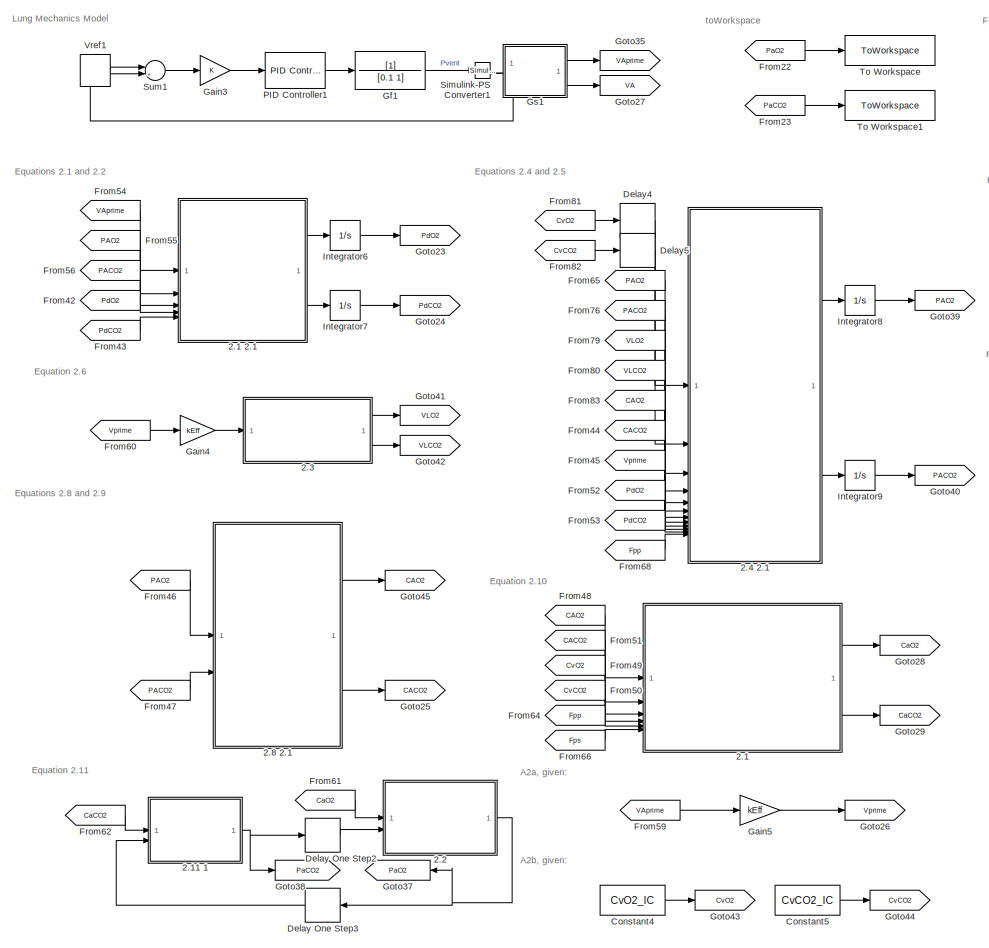
[diagram: root canvas - part 1/3, left side, full height]
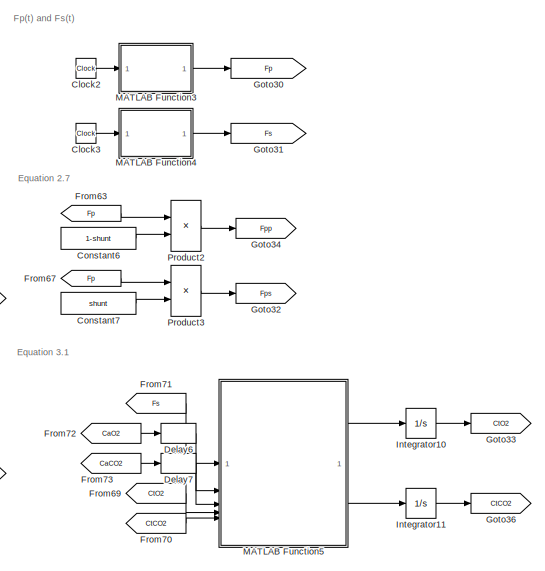
[diagram: root canvas - part 2/3, top center region]
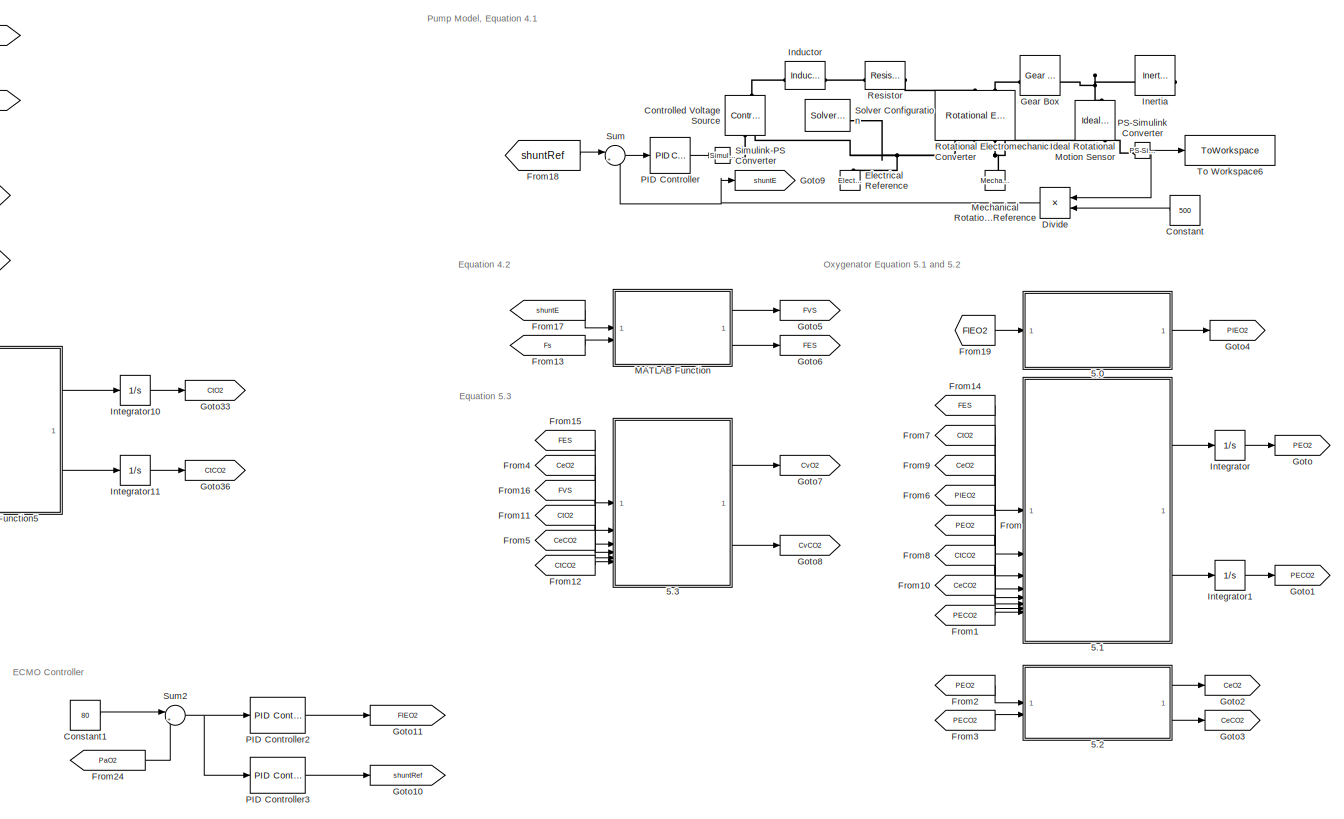
[diagram: root canvas - part 3/3, right side, full height]
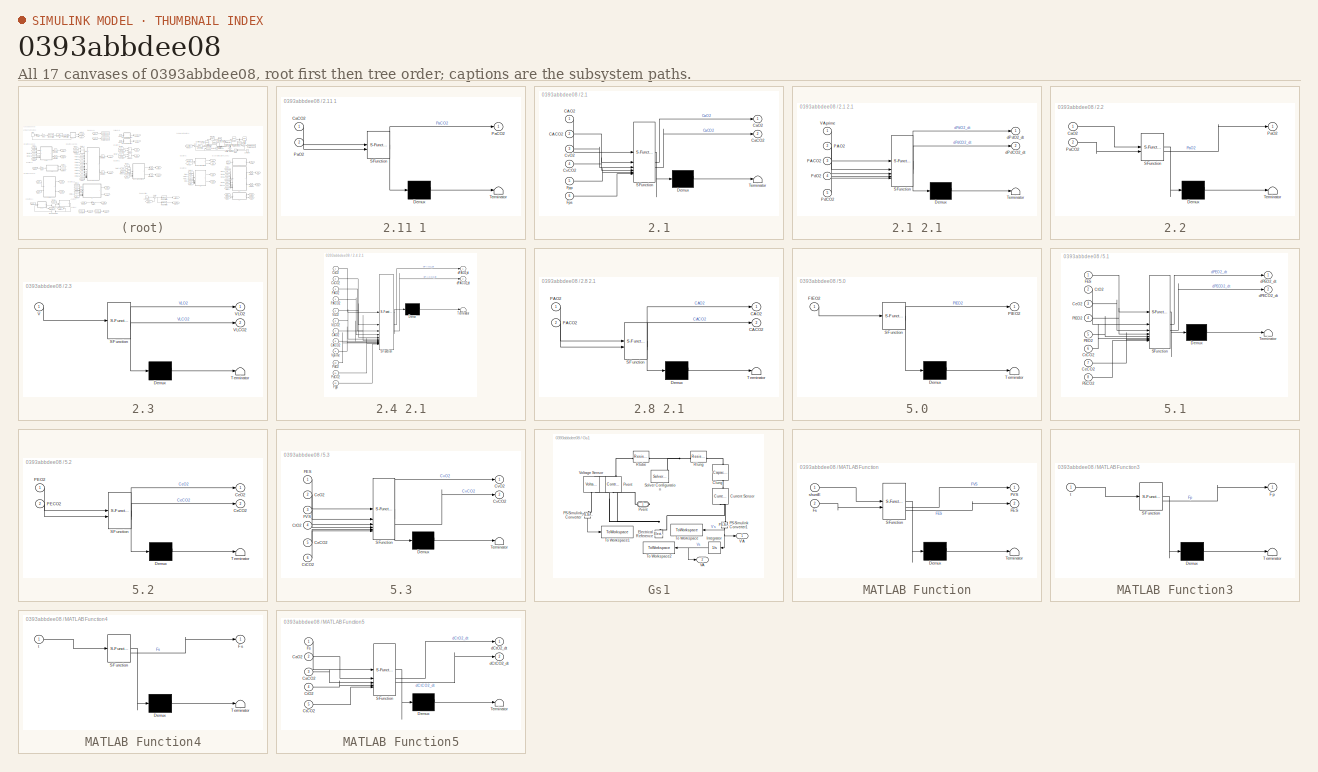
[diagram: thumbnail index - all 17 canvases of the model, root first then tree order]
MODEL slx_0393abbdee08
KIND model
CONFIG AbsTol = auto
CONFIG EnableMultiTasking = off
CONFIG FixedStep = auto
CONFIG MaxStep = auto
CONFIG MinStep = auto
CONFIG RelTol = 1e-3
CONFIG SampleTimeConstraint = Unconstrained
CONFIG SolverName = VariableStepAuto
CONFIG StartTime = 0.0
CONFIG StopTime = 1200
BLOCK [SubSystem]  2.11 1
  ErrorFcn = Stateflow.Translate.translate
  PermitHierarchicalResolution = ExplicitOnly
  SFBlockType = MATLAB Function
  SystemSampleTime = Tsamp
  TreatAsAtomicUnit = on
BLOCK [Demux]  2.11 1/ Demux 
  Outputs = 1
BLOCK [S-Function]  2.11 1/ SFunction 
  EnableBusSupport = on
  FunctionName = sf_sfun
  Parameters = CsatCO2,K2,alpha2,beta2,h2
  PortCounts = [2 2]
  SFcnIsStateOwnerBlock = off
  SFunctionDeploymentMode = off
  Tag = Stateflow S-Function 7
BLOCK [Terminator]  2.11 1/ Terminator 
BLOCK [Inport]  2.11 1/CaCO2
BLOCK [Outport]  2.11 1/PaCO2
BLOCK [Inport]  2.11 1/PaO2
  Port = 2
BLOCK [SubSystem] 2.1
  ErrorFcn = Stateflow.Translate.translate
  PermitHierarchicalResolution = ExplicitOnly
  SFBlockType = MATLAB Function
  SystemSampleTime = Tsamp
  TreatAsAtomicUnit = on
BLOCK [SubSystem] 2.1 2.1
  ErrorFcn = Stateflow.Translate.translate
  PermitHierarchicalResolution = ExplicitOnly
  SFBlockType = MATLAB Function
  SystemSampleTime = Tsamp
  TreatAsAtomicUnit = on
BLOCK [Demux] 2.1 2.1/ Demux 
  Outputs = 1
BLOCK [S-Function] 2.1 2.1/ SFunction 
  EnableBusSupport = on
  FunctionName = sf_sfun
  Parameters = PICO2,PIO2,VD
  PortCounts = [5 3]
  SFcnIsStateOwnerBlock = off
  SFunctionDeploymentMode = off
  Tag = Stateflow S-Function 2
BLOCK [Terminator] 2.1 2.1/ Terminator 
BLOCK [Inport] 2.1 2.1/PACO2
  Port = 3
BLOCK [Inport] 2.1 2.1/PAO2
  Port = 2
BLOCK [Inport] 2.1 2.1/PdCO2
  Port = 5
BLOCK [Inport] 2.1 2.1/PdO2
  Port = 4
BLOCK [Inport] 2.1 2.1/VAprime
BLOCK [Outport] 2.1 2.1/dPdCO2_dt
  Port = 2
BLOCK [Outport] 2.1 2.1/dPdO2_dt
BLOCK [Demux] 2.1/ Demux 
  Outputs = 1
BLOCK [S-Function] 2.1/ SFunction 
  EnableBusSupport = on
  FunctionName = sf_sfun
  PortCounts = [6 3]
  SFcnIsStateOwnerBlock = off
  SFunctionDeploymentMode = off
  Tag = Stateflow S-Function 4
BLOCK [Terminator] 2.1/ Terminator 
BLOCK [Inport] 2.1/CACO2
  Port = 2
BLOCK [Inport] 2.1/CAO2
BLOCK [Outport] 2.1/CaCO2
  Port = 2
BLOCK [Outport] 2.1/CaO2
BLOCK [Inport] 2.1/CvCO2
  Port = 4
BLOCK [Inport] 2.1/CvO2
  Port = 3
BLOCK [Inport] 2.1/Fpp
  Port = 5
BLOCK [Inport] 2.1/Fps
  Port = 6
BLOCK [SubSystem] 2.2
  ErrorFcn = Stateflow.Translate.translate
  PermitHierarchicalResolution = ExplicitOnly
  SFBlockType = MATLAB Function
  SystemSampleTime = Tsamp
  TreatAsAtomicUnit = on
BLOCK [Demux] 2.2/ Demux 
  Outputs = 1
BLOCK [S-Function] 2.2/ SFunction 
  EnableBusSupport = on
  FunctionName = sf_sfun
  Parameters = CsatO2,K1,alpha1,beta1,h1
  PortCounts = [2 2]
  SFcnIsStateOwnerBlock = off
  SFunctionDeploymentMode = off
  Tag = Stateflow S-Function 8
BLOCK [Terminator] 2.2/ Terminator 
BLOCK [Inport] 2.2/CaO2
BLOCK [Inport] 2.2/PaCO2
  Port = 2
BLOCK [Outport] 2.2/PaO2
BLOCK [SubSystem] 2.3
  ErrorFcn = Stateflow.Translate.translate
  PermitHierarchicalResolution = ExplicitOnly
  SFBlockType = MATLAB Function
  SystemSampleTime = Tsamp
  TreatAsAtomicUnit = on
BLOCK [Demux] 2.3/ Demux 
  Outputs = 1
BLOCK [S-Function] 2.3/ SFunction 
  EnableBusSupport = on
  FunctionName = sf_sfun
  Parameters = VL0
  PortCounts = [1 3]
  SFcnIsStateOwnerBlock = off
  SFunctionDeploymentMode = off
  Tag = Stateflow S-Function 3
BLOCK [Terminator] 2.3/ Terminator 
BLOCK [Inport] 2.3/V
BLOCK [Outport] 2.3/VLCO2
  Port = 2
BLOCK [Outport] 2.3/VLO2
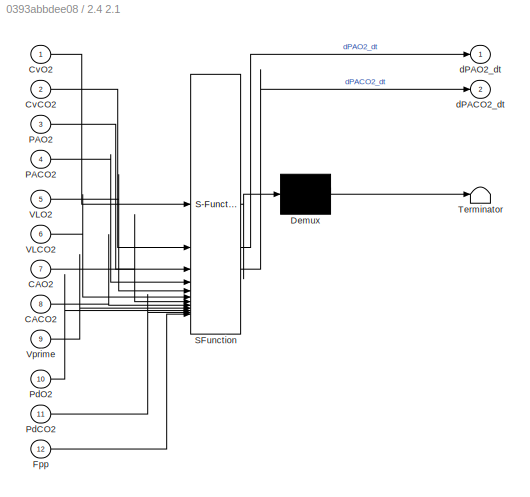
BLOCK [SubSystem] 2.4 2.1
  ErrorFcn = Stateflow.Translate.translate
  PermitHierarchicalResolution = ExplicitOnly
  SFBlockType = MATLAB Function
  SystemSampleTime = Tsamp
  TreatAsAtomicUnit = on
BLOCK [Demux] 2.4 2.1/ Demux 
  Outputs = 1
BLOCK [S-Function] 2.4 2.1/ SFunction 
  EnableBusSupport = on
  FunctionName = sf_sfun
  PortCounts = [12 3]
  SFcnIsStateOwnerBlock = off
  SFunctionDeploymentMode = off
  Tag = Stateflow S-Function 1
BLOCK [Terminator] 2.4 2.1/ Terminator 
BLOCK [Inport] 2.4 2.1/CACO2
  Port = 8
BLOCK [Inport] 2.4 2.1/CAO2
  Port = 7
BLOCK [Inport] 2.4 2.1/CvCO2
  Port = 2
BLOCK [Inport] 2.4 2.1/CvO2
BLOCK [Inport] 2.4 2.1/Fpp
  Port = 12
BLOCK [Inport] 2.4 2.1/PACO2
  Port = 4
BLOCK [Inport] 2.4 2.1/PAO2
  Port = 3
BLOCK [Inport] 2.4 2.1/PdCO2
  Port = 11
BLOCK [Inport] 2.4 2.1/PdO2
  Port = 10
BLOCK [Inport] 2.4 2.1/VLCO2
  Port = 6
BLOCK [Inport] 2.4 2.1/VLO2
  Port = 5
BLOCK [Inport] 2.4 2.1/Vprime
  Port = 9
BLOCK [Outport] 2.4 2.1/dPACO2_dt
  Port = 2
BLOCK [Outport] 2.4 2.1/dPAO2_dt
BLOCK [SubSystem] 2.8 2.1
  ErrorFcn = Stateflow.Translate.translate
  PermitHierarchicalResolution = ExplicitOnly
  SFBlockType = MATLAB Function
  SystemSampleTime = Tsamp
  TreatAsAtomicUnit = on
BLOCK [Demux] 2.8 2.1/ Demux 
  Outputs = 1
BLOCK [S-Function] 2.8 2.1/ SFunction 
  EnableBusSupport = on
  FunctionName = sf_sfun
  Parameters = CsatCO2,CsatO2,K1,K2,alpha1,alpha2,beta1,beta2,h1,h2
  PortCounts = [2 3]
  SFcnIsStateOwnerBlock = off
  SFunctionDeploymentMode = off
  Tag = Stateflow S-Function 5
BLOCK [Terminator] 2.8 2.1/ Terminator 
BLOCK [Outport] 2.8 2.1/CACO2
  Port = 2
BLOCK [Outport] 2.8 2.1/CAO2
BLOCK [Inport] 2.8 2.1/PACO2
  Port = 2
BLOCK [Inport] 2.8 2.1/PAO2
BLOCK [SubSystem] 5.0
  ErrorFcn = Stateflow.Translate.translate
  PermitHierarchicalResolution = ExplicitOnly
  SFBlockType = MATLAB Function
  SystemSampleTime = Tsamp
  TreatAsAtomicUnit = on
BLOCK [Demux] 5.0/ Demux 
  Outputs = 1
BLOCK [S-Function] 5.0/ SFunction 
  EnableBusSupport = on
  FunctionName = sf_sfun
  Parameters = Patm,Pws
  PortCounts = [1 2]
  SFcnIsStateOwnerBlock = off
  SFunctionDeploymentMode = off
  Tag = Stateflow S-Function 12
BLOCK [Terminator] 5.0/ Terminator 
BLOCK [Inport] 5.0/FIEO2
BLOCK [Outport] 5.0/PIEO2
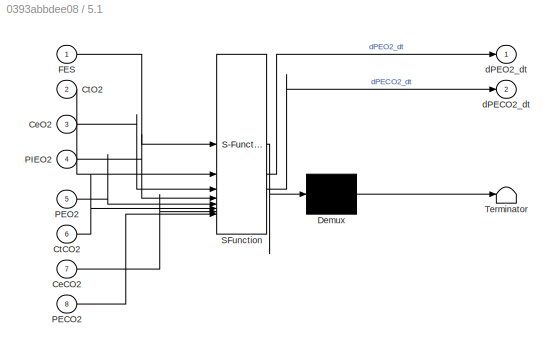
BLOCK [SubSystem] 5.1
  ErrorFcn = Stateflow.Translate.translate
  PermitHierarchicalResolution = ExplicitOnly
  SFBlockType = MATLAB Function
  SystemSampleTime = Tsamp
  TreatAsAtomicUnit = on
BLOCK [Demux] 5.1/ Demux 
  Outputs = 1
BLOCK [S-Function] 5.1/ SFunction 
  EnableBusSupport = on
  FunctionName = sf_sfun
  Parameters = VECO2,VEO2,VprimeEcmo
  PortCounts = [8 3]
  SFcnIsStateOwnerBlock = off
  SFunctionDeploymentMode = off
  Tag = Stateflow S-Function 11
BLOCK [Terminator] 5.1/ Terminator 
BLOCK [Inport] 5.1/CeCO2
  Port = 7
BLOCK [Inport] 5.1/CeO2
  Port = 3
BLOCK [Inport] 5.1/CtCO2
  Port = 6
BLOCK [Inport] 5.1/CtO2
  Port = 2
BLOCK [Inport] 5.1/FES
BLOCK [Inport] 5.1/PECO2
  Port = 8
BLOCK [Inport] 5.1/PEO2
  Port = 5
BLOCK [Inport] 5.1/PIEO2
  Port = 4
BLOCK [Outport] 5.1/dPECO2_dt
  Port = 2
BLOCK [Outport] 5.1/dPEO2_dt
BLOCK [SubSystem] 5.2
  ErrorFcn = Stateflow.Translate.translate
  PermitHierarchicalResolution = ExplicitOnly
  SFBlockType = MATLAB Function
  SystemSampleTime = Tsamp
  TreatAsAtomicUnit = on
BLOCK [Demux] 5.2/ Demux 
  Outputs = 1
BLOCK [S-Function] 5.2/ SFunction 
  EnableBusSupport = on
  FunctionName = sf_sfun
  Parameters = CsatCO2,CsatO2,K1,K2,alpha1,alpha2,beta1,beta2,h1,h2
  PortCounts = [2 3]
  SFcnIsStateOwnerBlock = off
  SFunctionDeploymentMode = off
  Tag = Stateflow S-Function 13
BLOCK [Terminator] 5.2/ Terminator 
BLOCK [Outport] 5.2/CeCO2
  Port = 2
BLOCK [Outport] 5.2/CeO2
BLOCK [Inport] 5.2/PECO2
  Port = 2
BLOCK [Inport] 5.2/PEO2
BLOCK [SubSystem] 5.3
  ErrorFcn = Stateflow.Translate.translate
  PermitHierarchicalResolution = ExplicitOnly
  SFBlockType = MATLAB Function
  SystemSampleTime = Tsamp
  TreatAsAtomicUnit = on
BLOCK [Demux] 5.3/ Demux 
  Outputs = 1
BLOCK [S-Function] 5.3/ SFunction 
  EnableBusSupport = on
  FunctionName = sf_sfun
  PortCounts = [6 3]
  SFcnIsStateOwnerBlock = off
  SFunctionDeploymentMode = off
  Tag = Stateflow S-Function 14
BLOCK [Terminator] 5.3/ Terminator 
BLOCK [Inport] 5.3/CeCO2
  Port = 5
BLOCK [Inport] 5.3/CeO2
  Port = 2
BLOCK [Inport] 5.3/CtCO2
  Port = 6
BLOCK [Inport] 5.3/CtO2
  Port = 4
BLOCK [Outport] 5.3/CvCO2
  Port = 2
BLOCK [Outport] 5.3/CvO2
BLOCK [Inport] 5.3/FES
BLOCK [Inport] 5.3/FVS
  Port = 3
BLOCK [Clock] Clock2
BLOCK [Clock] Clock3
BLOCK [Constant] Constant
  Value = 500
BLOCK [Constant] Constant1
  Value = 80
BLOCK [Constant] Constant4
  Commented = on
  SampleTime = Tsamp
  Value = CvO2_IC
BLOCK [Constant] Constant5
  Commented = on
  SampleTime = Tsamp
  Value = CvCO2_IC
BLOCK [Constant] Constant6
  Value = 1-shunt
BLOCK [Constant] Constant7
  Value = shunt
BLOCK [Reference] Controlled Voltage Source  REF=fl_lib/Electrical/Electrical Sources/Controlled Voltage
Source
  NameLocation = right
  SourceBlock = fl_lib/Electrical/Electrical Sources/Controlled Voltage\nSource
  SourceType = Controlled Voltage\nSource
BLOCK [Delay] Delay One Step2
  DelayLength = 0
  InitialCondition = PACO2_IC
  InputPortMap = u0
  SampleTime = Tsamp
BLOCK [Delay] Delay One Step3
  DelayLength = 1
  InitialCondition = PAO2_IC
  InputPortMap = u0
  SampleTime = Tsamp
BLOCK [Delay] Delay4
  DelayLength = Tau_TL
  InitialCondition = CvO2_IC
  InputPortMap = u0
  SampleTime = Tsamp
BLOCK [Delay] Delay5
  DelayLength = Tau_TL
  InitialCondition = CvCO2_IC
  InputPortMap = u0
  SampleTime = Tsamp
BLOCK [Delay] Delay6
  DelayLength = Tau_LT
  InitialCondition = CaO2_IC
  InputPortMap = u0
  SampleTime = Tsamp
BLOCK [Delay] Delay7
  DelayLength = Tau_LT
  InitialCondition = CaCO2_IC
  InputPortMap = u0
  SampleTime = Tsamp
BLOCK [Product] Divide
  Inputs = */
BLOCK [Reference] Electrical Reference  REF=fl_lib/Electrical/Electrical Elements/Electrical Reference
  NameLocation = right
  SourceBlock = fl_lib/Electrical/Electrical Elements/Electrical Reference
  SourceType = Electrical Reference
BLOCK [From] From
  GotoTag = PEO2
BLOCK [From] From1
  GotoTag = PECO2
BLOCK [From] From10
  GotoTag = CeCO2
BLOCK [From] From11
  GotoTag = CtO2
BLOCK [From] From12
  GotoTag = CtCO2
BLOCK [From] From13
  GotoTag = Fs
BLOCK [From] From14
  GotoTag = FES
BLOCK [From] From15
  GotoTag = FES
BLOCK [From] From16
  GotoTag = FVS
BLOCK [From] From17
  GotoTag = shuntE
BLOCK [From] From18
  GotoTag = shuntRef
BLOCK [From] From19
  GotoTag = FIEO2
BLOCK [From] From2
  GotoTag = PEO2
BLOCK [From] From22
  GotoTag = PaO2
BLOCK [From] From23
  GotoTag = PaCO2
BLOCK [From] From24
  GotoTag = PaO2
BLOCK [From] From3
  GotoTag = PECO2
BLOCK [From] From4
  GotoTag = CeO2
BLOCK [From] From42
  GotoTag = PdO2
BLOCK [From] From43
  GotoTag = PdCO2
BLOCK [From] From44
  GotoTag = CACO2
BLOCK [From] From45
  GotoTag = Vprime
BLOCK [From] From46
  GotoTag = PAO2
BLOCK [From] From47
  GotoTag = PACO2
BLOCK [From] From48
  GotoTag = CAO2
BLOCK [From] From49
  GotoTag = CvO2
BLOCK [From] From5
  GotoTag = CeCO2
BLOCK [From] From50
  GotoTag = CvCO2
BLOCK [From] From51
  GotoTag = CACO2
BLOCK [From] From52
  GotoTag = PdO2
BLOCK [From] From53
  GotoTag = PdCO2
BLOCK [From] From54
  GotoTag = VAprime
BLOCK [From] From55
  GotoTag = PAO2
BLOCK [From] From56
  GotoTag = PACO2
BLOCK [From] From59
  GotoTag = VAprime
BLOCK [From] From6
  GotoTag = PIEO2
BLOCK [From] From60
  GotoTag = Vprime
BLOCK [From] From61
  GotoTag = CaO2
BLOCK [From] From62
  GotoTag = CaCO2
BLOCK [From] From63
  GotoTag = Fp
BLOCK [From] From64
  GotoTag = Fpp
BLOCK [From] From65
  GotoTag = PAO2
BLOCK [From] From66
  GotoTag = Fps
BLOCK [From] From67
  GotoTag = Fp
BLOCK [From] From68
  GotoTag = Fpp
BLOCK [From] From69
  GotoTag = CtO2
BLOCK [From] From7
  GotoTag = CtO2
BLOCK [From] From70
  GotoTag = CtCO2
BLOCK [From] From71
  GotoTag = Fs
BLOCK [From] From72
  GotoTag = CaO2
BLOCK [From] From73
  GotoTag = CaCO2
BLOCK [From] From76
  GotoTag = PACO2
BLOCK [From] From79
  GotoTag = VLO2
BLOCK [From] From8
  GotoTag = CtCO2
BLOCK [From] From80
  GotoTag = VLCO2
BLOCK [From] From81
  GotoTag = CvO2
BLOCK [From] From82
  GotoTag = CvCO2
BLOCK [From] From83
  GotoTag = CAO2
BLOCK [From] From9
  GotoTag = CeO2
BLOCK [Gain] Gain3
  Gain = K
BLOCK [Gain] Gain4
  Gain = kEff
BLOCK [Gain] Gain5
  Gain = kEff
BLOCK [Reference] Gear Box  REF=fl_lib/Mechanical/Mechanisms/Gear Box
  SourceBlock = fl_lib/Mechanical/Mechanisms/Gear Box
  SourceType = Gear Box
BLOCK [TransferFcn] Gf1
  Denominator = [0.1 1]
BLOCK [Goto] Goto
  GotoTag = PEO2
BLOCK [Goto] Goto1
  GotoTag = PECO2
BLOCK [Goto] Goto10
  GotoTag = shuntRef
BLOCK [Goto] Goto11
  GotoTag = FIEO2
BLOCK [Goto] Goto2
  GotoTag = CeO2
BLOCK [Goto] Goto23
  GotoTag = PdO2
BLOCK [Goto] Goto24
  GotoTag = PdCO2
BLOCK [Goto] Goto25
  GotoTag = CACO2
BLOCK [Goto] Goto26
  GotoTag = Vprime
BLOCK [Goto] Goto27
  GotoTag = VA
BLOCK [Goto] Goto28
  GotoTag = CaO2
BLOCK [Goto] Goto29
  GotoTag = CaCO2
BLOCK [Goto] Goto3
  GotoTag = CeCO2
BLOCK [Goto] Goto30
  GotoTag = Fp
BLOCK [Goto] Goto31
  GotoTag = Fs
BLOCK [Goto] Goto32
  GotoTag = Fps
BLOCK [Goto] Goto33
  GotoTag = CtO2
BLOCK [Goto] Goto34
  GotoTag = Fpp
BLOCK [Goto] Goto35
  GotoTag = VAprime
BLOCK [Goto] Goto36
  GotoTag = CtCO2
BLOCK [Goto] Goto37
  GotoTag = PaO2
BLOCK [Goto] Goto38
  GotoTag = PaCO2
BLOCK [Goto] Goto39
  GotoTag = PAO2
BLOCK [Goto] Goto4
  GotoTag = PIEO2
BLOCK [Goto] Goto40
  GotoTag = PACO2
BLOCK [Goto] Goto41
  GotoTag = VLO2
BLOCK [Goto] Goto42
  GotoTag = VLCO2
BLOCK [Goto] Goto43
  Commented = on
  GotoTag = CvO2
BLOCK [Goto] Goto44
  Commented = on
  GotoTag = CvCO2
BLOCK [Goto] Goto45
  GotoTag = CAO2
BLOCK [Goto] Goto5
  GotoTag = FVS
BLOCK [Goto] Goto6
  GotoTag = FES
BLOCK [Goto] Goto7
  GotoTag = CvO2
BLOCK [Goto] Goto8
  GotoTag = CvCO2
BLOCK [Goto] Goto9
  GotoTag = shuntE
BLOCK [SubSystem] Gs1
  PortSchema = {"entries":[{"content":{"sides":[{"content":{"connectorIds":["Out1","Out2"]},"type":"ConnectorPlacement.EquallySpacedRectSide","uuid":"c27d9928-4b86-4da3-a78c-9004074cc1dc"},{"content":{"connectorIds":["RConn1"],"side":"RIGHT"},"type":"ConnectorPlacement.EquallySpacedRectSide","uuid":"e53dfbe0-a76d-428f-9787-aeb453f7ae86"},{"content":{"side":"TOP"},"type":"ConnectorPlacement.EquallySpacedRectSide"...<+232ch>
BLOCK [PMIOPort] Gs1/ Pvent 
  Side = Right
BLOCK [Reference] Gs1/Clung  REF=fl_lib/Electrical/Electrical Elements/Capacitor
  NameLocation = left
  SourceBlock = fl_lib/Electrical/Electrical Elements/Capacitor
  SourceType = Capacitor
BLOCK [Reference] Gs1/Current Sensor  REF=fl_lib/Electrical/Electrical Sensors/Current Sensor
  NameLocation = left
  SourceBlock = fl_lib/Electrical/Electrical Sensors/Current Sensor
  SourceType = Current Sensor
BLOCK [Reference] Gs1/Electrical Reference  REF=fl_lib/Electrical/Electrical Elements/Electrical Reference
  NameLocation = right
  SourceBlock = fl_lib/Electrical/Electrical Elements/Electrical Reference
  SourceType = Electrical Reference
BLOCK [Integrator] Gs1/Integrator
BLOCK [Reference] Gs1/PS-Simulink Converter  REF=nesl_utility/PS-Simulink
Converter
  NameLocation = left
  SourceBlock = nesl_utility/PS-Simulink\nConverter
  SourceType = PS-Simulink\nConverter
BLOCK [Reference] Gs1/PS-Simulink Converter1  REF=nesl_utility/PS-Simulink
Converter
  NameLocation = left
  SourceBlock = nesl_utility/PS-Simulink\nConverter
  SourceType = PS-Simulink\nConverter
BLOCK [Reference] Gs1/Pvent  REF=fl_lib/Electrical/Electrical Sources/Controlled Voltage
Source
  NameLocation = right
  SourceBlock = fl_lib/Electrical/Electrical Sources/Controlled Voltage\nSource
  SourceType = Controlled Voltage\nSource
BLOCK [Reference] Gs1/Rlung  REF=fl_lib/Electrical/Electrical Elements/Resistor
  SourceBlock = fl_lib/Electrical/Electrical Elements/Resistor
  SourceType = Resistor
BLOCK [Reference] Gs1/Rtube  REF=fl_lib/Electrical/Electrical Elements/Resistor
  SourceBlock = fl_lib/Electrical/Electrical Elements/Resistor
  SourceType = Resistor
BLOCK [Reference] Gs1/Solver Configuration  REF=nesl_utility/Solver
Configuration
  SourceBlock = nesl_utility/Solver\nConfiguration
  SourceType = Solver\nConfiguration
BLOCK [ToWorkspace] Gs1/To Workspace
  FixptAsFi = on
  MaxDataPoints = inf
  NameLocation = top
  SampleTime = -1
  SaveFormat = Timeseries
  VariableName = VA_prime
BLOCK [ToWorkspace] Gs1/To Workspace1
  FixptAsFi = on
  MaxDataPoints = inf
  SampleTime = -1
  SaveFormat = Timeseries
  VariableName = Pvent
BLOCK [ToWorkspace] Gs1/To Workspace2
  FixptAsFi = on
  MaxDataPoints = inf
  NameLocation = top
  SampleTime = -1
  SaveFormat = Timeseries
  VariableName = VA
BLOCK [Outport] Gs1/V'A
BLOCK [Outport] Gs1/VA
  Port = 2
BLOCK [Reference] Gs1/Voltage Sensor  REF=fl_lib/Electrical/Electrical Sensors/Voltage Sensor
  LibrarySourceBlock = ee_lib/Sensors &\nTransducers/Voltage Sensor
  NameLocation = right
  SourceBlock = fl_lib/Electrical/Electrical Sensors/Voltage Sensor
  SourceType = Voltage Sensor
BLOCK [Reference] Ideal Rotational Motion Sensor  REF=fl_lib/Mechanical/Mechanical Sensors/Ideal Rotational
Motion Sensor
  NameLocation = left
  SourceBlock = fl_lib/Mechanical/Mechanical Sensors/Ideal Rotational\nMotion Sensor
  SourceType = Ideal Rotational\nMotion Sensor
BLOCK [Reference] Inductor  REF=ee_lib/Passive/Inductor
  SourceBlock = ee_lib/Passive/Inductor
  SourceType = Inductor
BLOCK [Reference] Inertia  REF=fl_lib/Mechanical/Rotational Elements/Inertia
  NameLocation = top
  SourceBlock = fl_lib/Mechanical/Rotational Elements/Inertia
  SourceType = Inertia
BLOCK [Integrator] Integrator
  InitialCondition = PEO2_IC
BLOCK [Integrator] Integrator1
  InitialCondition = PECO2_IC
BLOCK [Integrator] Integrator10
  InitialCondition = CvO2_IC
BLOCK [Integrator] Integrator11
  InitialCondition = CvCO2_IC
BLOCK [Integrator] Integrator6
  InitialCondition = PdO2_IC
BLOCK [Integrator] Integrator7
  InitialCondition = PdCO2_IC
BLOCK [Integrator] Integrator8
  InitialCondition = PAO2_IC
BLOCK [Integrator] Integrator9
  InitialCondition = PACO2_IC
BLOCK [SubSystem] MATLAB Function
  ErrorFcn = Stateflow.Translate.translate
  PermitHierarchicalResolution = ExplicitOnly
  SFBlockType = MATLAB Function
  SystemSampleTime = Tsamp
  TreatAsAtomicUnit = on
BLOCK [Demux] MATLAB Function/ Demux 
  Outputs = 1
BLOCK [S-Function] MATLAB Function/ SFunction 
  EnableBusSupport = on
  FunctionName = sf_sfun
  PortCounts = [2 3]
  SFcnIsStateOwnerBlock = off
  SFunctionDeploymentMode = off
  Tag = Stateflow S-Function 15
BLOCK [Terminator] MATLAB Function/ Terminator 
BLOCK [Outport] MATLAB Function/FES
  Port = 2
BLOCK [Outport] MATLAB Function/FVS
BLOCK [Inport] MATLAB Function/Fs
  Port = 2
BLOCK [Inport] MATLAB Function/shuntE
BLOCK [SubSystem] MATLAB Function3
  ErrorFcn = Stateflow.Translate.translate
  PermitHierarchicalResolution = ExplicitOnly
  SFBlockType = MATLAB Function
  SystemSampleTime = Tsamp
  TreatAsAtomicUnit = on
BLOCK [Demux] MATLAB Function3/ Demux 
  Outputs = 1
BLOCK [S-Function] MATLAB Function3/ SFunction 
  EnableBusSupport = on
  FunctionName = sf_sfun
  PortCounts = [1 2]
  SFcnIsStateOwnerBlock = off
  SFunctionDeploymentMode = off
  Tag = Stateflow S-Function 6
BLOCK [Terminator] MATLAB Function3/ Terminator 
BLOCK [Outport] MATLAB Function3/Fp
BLOCK [Inport] MATLAB Function3/t
BLOCK [SubSystem] MATLAB Function4
  ErrorFcn = Stateflow.Translate.translate
  PermitHierarchicalResolution = ExplicitOnly
  SFBlockType = MATLAB Function
  SystemSampleTime = Tsamp
  TreatAsAtomicUnit = on
BLOCK [Demux] MATLAB Function4/ Demux 
  Outputs = 1
BLOCK [S-Function] MATLAB Function4/ SFunction 
  EnableBusSupport = on
  FunctionName = sf_sfun
  PortCounts = [1 2]
  SFcnIsStateOwnerBlock = off
  SFunctionDeploymentMode = off
  Tag = Stateflow S-Function 9
BLOCK [Terminator] MATLAB Function4/ Terminator 
BLOCK [Outport] MATLAB Function4/Fs
BLOCK [Inport] MATLAB Function4/t
BLOCK [SubSystem] MATLAB Function5
  ErrorFcn = Stateflow.Translate.translate
  PermitHierarchicalResolution = ExplicitOnly
  SFBlockType = MATLAB Function
  SystemSampleTime = Tsamp
  TreatAsAtomicUnit = on
BLOCK [Demux] MATLAB Function5/ Demux 
  Outputs = 1
BLOCK [S-Function] MATLAB Function5/ SFunction 
  EnableBusSupport = on
  FunctionName = sf_sfun
  Parameters = MRCO2,MRO2,VTCO2,VTO2
  PortCounts = [5 3]
  SFcnIsStateOwnerBlock = off
  SFunctionDeploymentMode = off
  Tag = Stateflow S-Function 10
BLOCK [Terminator] MATLAB Function5/ Terminator 
BLOCK [Inport] MATLAB Function5/CaCO2
  Port = 3
BLOCK [Inport] MATLAB Function5/CaO2
  Port = 2
BLOCK [Inport] MATLAB Function5/CtCO2
  Port = 5
BLOCK [Inport] MATLAB Function5/CtO2
  Port = 4
BLOCK [Inport] MATLAB Function5/Fs
BLOCK [Outport] MATLAB Function5/dCtCO2_dt
  Port = 2
BLOCK [Outport] MATLAB Function5/dCtO2_dt
BLOCK [Reference] Mechanical Rotational Reference  REF=fl_lib/Mechanical/Rotational Elements/Mechanical
Rotational Reference
  NameLocation = right
  SourceBlock = fl_lib/Mechanical/Rotational Elements/Mechanical\nRotational Reference
  SourceType = Mechanical\nRotational Reference
BLOCK [Reference] PID Controller  REF=slpidlib/PID Controller
  LibrarySourceBlock = simulink/Continuous/PID Controller
  SourceBlock = slpidlib/PID Controller
  SourceType = PID 1dof
BLOCK [Reference] PID Controller1  REF=slpidlib/PID Controller
  LibrarySourceBlock = simulink/Continuous/PID Controller
  SourceBlock = slpidlib/PID Controller
  SourceType = PID 1dof
BLOCK [Reference] PID Controller2  REF=slpidlib/PID Controller
  LibrarySourceBlock = simulink/Continuous/PID Controller
  SourceBlock = slpidlib/PID Controller
  SourceType = PID 1dof
BLOCK [Reference] PID Controller3  REF=slpidlib/PID Controller
  LibrarySourceBlock = simulink/Continuous/PID Controller
  SourceBlock = slpidlib/PID Controller
  SourceType = PID 1dof
BLOCK [Reference] PS-Simulink Converter  REF=nesl_utility/PS-Simulink
Converter
  SourceBlock = nesl_utility/PS-Simulink\nConverter
  SourceType = PS-Simulink\nConverter
BLOCK [Product] Product2
BLOCK [Product] Product3
BLOCK [Reference] Resistor  REF=ee_lib/Passive/Resistor
  SourceBlock = ee_lib/Passive/Resistor
  SourceType = Resistor
BLOCK [Reference] Rotational Electromechanical Converter  REF=fl_lib/Electrical/Electrical Elements/Rotational
Electromechanical
Converter
  NameLocation = right
  SourceBlock = fl_lib/Electrical/Electrical Elements/Rotational\nElectromechanical\nConverter
  SourceType = Rotational\nElectromechanical\nConverter
BLOCK [Reference] Simulink-PS Converter  REF=nesl_utility/Simulink-PS
Converter
  SourceBlock = nesl_utility/Simulink-PS\nConverter
  SourceType = Simulink-PS\nConverter
BLOCK [Reference] Simulink-PS Converter1  REF=nesl_utility/Simulink-PS
Converter
  SourceBlock = nesl_utility/Simulink-PS\nConverter
  SourceType = Simulink-PS\nConverter
BLOCK [Reference] Solver Configuration  REF=nesl_utility/Solver
Configuration
  SourceBlock = nesl_utility/Solver\nConfiguration
  SourceType = Solver\nConfiguration
BLOCK [Sum] Sum
  Inputs = |+-
BLOCK [Sum] Sum1
  Inputs = |+-
BLOCK [Sum] Sum2
  Inputs = |+-
BLOCK [ToWorkspace] To Workspace
  FixptAsFi = on
  MaxDataPoints = inf
  SampleTime = Tsamp
  SaveFormat = Timeseries
  VariableName = PaO2
BLOCK [ToWorkspace] To Workspace1
  FixptAsFi = on
  MaxDataPoints = inf
  SampleTime = Tsamp
  SaveFormat = Timeseries
  VariableName = PaCO2
BLOCK [ToWorkspace] To Workspace6
  FixptAsFi = on
  MaxDataPoints = inf
  SampleTime = Tsamp
  SaveFormat = Timeseries
  VariableName = wout
BLOCK [DiscretePulseGenerator] Vref1
  Amplitude = VReference
  Period = 1/0.2
  PulseType = Time based
  PulseWidth = 35
ANNOTATION (root): A2a, given:
ANNOTATION (root): A2b, given:
ANNOTATION (root): ECMO Controller
ANNOTATION (root): Equation 2.10
ANNOTATION (root): Equation 2.11
ANNOTATION (root): Equation 2.6
ANNOTATION (root): Equation 2.7
ANNOTATION (root): Equation 3.1
ANNOTATION (root): Equation 4.2
ANNOTATION (root): Equation 5.3
ANNOTATION (root): Equations 2.1 and 2.2
ANNOTATION (root): Equations 2.4 and 2.5
ANNOTATION (root): Equations 2.8 and 2.9
ANNOTATION (root): Fp(t) and Fs(t)
ANNOTATION (root): Lung Mechanics Model
ANNOTATION (root): Oxygenator Equation 5.1 and 5.2
ANNOTATION (root): Pump Model, Equation 4.1
ANNOTATION (root): toWorkspace
NET  2.11 1:1 -> Delay One Step2:1, Goto38:1
LINE 2.1 2.1:1 -> Integrator6:1
LINE 2.1 2.1:2 -> Integrator7:1
LINE 2.1:1 -> Goto28:1
LINE 2.1:2 -> Goto29:1
NET 2.2:1 -> Delay One Step3:1, Goto37:1
LINE 2.3:1 -> Goto41:1
LINE 2.3:2 -> Goto42:1
LINE 2.4 2.1:1 -> Integrator8:1
LINE 2.4 2.1:2 -> Integrator9:1
LINE 2.8 2.1:1 -> Goto45:1
LINE 2.8 2.1:2 -> Goto25:1
LINE 5.0:1 -> Goto4:1
LINE 5.1:1 -> Integrator:1
LINE 5.1:2 -> Integrator1:1
LINE 5.2:1 -> Goto2:1
LINE 5.2:2 -> Goto3:1
LINE 5.3:1 -> Goto7:1
LINE 5.3:2 -> Goto8:1
LINE Clock2:1 -> MATLAB Function3:1
LINE Clock3:1 -> MATLAB Function4:1
LINE Constant1:1 -> Sum2:1
LINE Constant4:1 -> Goto43:1
LINE Constant5:1 -> Goto44:1
LINE Constant6:1 -> Product2:2
LINE Constant7:1 -> Product3:2
LINE Constant:1 -> Divide:2
LINE Delay One Step2:1 -> 2.2:2
LINE Delay One Step3:1 ->  2.11 1:2
LINE Delay4:1 -> 2.4 2.1:1
LINE Delay5:1 -> 2.4 2.1:2
LINE Delay6:1 -> MATLAB Function5:2
LINE Delay7:1 -> MATLAB Function5:3
NET Divide:1 -> Goto9:1, Sum:2
LINE From10:1 -> 5.1:7
LINE From11:1 -> 5.3:4
LINE From12:1 -> 5.3:6
LINE From13:1 -> MATLAB Function:2
LINE From14:1 -> 5.1:1
LINE From15:1 -> 5.3:1
LINE From16:1 -> 5.3:3
LINE From17:1 -> MATLAB Function:1
LINE From18:1 -> Sum:1
LINE From19:1 -> 5.0:1
LINE From1:1 -> 5.1:8
LINE From22:1 -> To Workspace:1
LINE From23:1 -> To Workspace1:1
LINE From24:1 -> Sum2:2
LINE From2:1 -> 5.2:1
LINE From3:1 -> 5.2:2
LINE From42:1 -> 2.1 2.1:4
LINE From43:1 -> 2.1 2.1:5
LINE From44:1 -> 2.4 2.1:8
LINE From45:1 -> 2.4 2.1:9
LINE From46:1 -> 2.8 2.1:1
LINE From47:1 -> 2.8 2.1:2
LINE From48:1 -> 2.1:1
LINE From49:1 -> 2.1:3
LINE From4:1 -> 5.3:2
LINE From50:1 -> 2.1:4
LINE From51:1 -> 2.1:2
LINE From52:1 -> 2.4 2.1:10
LINE From53:1 -> 2.4 2.1:11
LINE From54:1 -> 2.1 2.1:1
LINE From55:1 -> 2.1 2.1:2
LINE From56:1 -> 2.1 2.1:3
LINE From59:1 -> Gain5:1
LINE From5:1 -> 5.3:5
LINE From60:1 -> Gain4:1
LINE From61:1 -> 2.2:1
LINE From62:1 ->  2.11 1:1
LINE From63:1 -> Product2:1
LINE From64:1 -> 2.1:5
LINE From65:1 -> 2.4 2.1:3
LINE From66:1 -> 2.1:6
LINE From67:1 -> Product3:1
LINE From68:1 -> 2.4 2.1:12
LINE From69:1 -> MATLAB Function5:4
LINE From6:1 -> 5.1:4
LINE From70:1 -> MATLAB Function5:5
LINE From71:1 -> MATLAB Function5:1
LINE From72:1 -> Delay6:1
LINE From73:1 -> Delay7:1
LINE From76:1 -> 2.4 2.1:4
LINE From79:1 -> 2.4 2.1:5
LINE From7:1 -> 5.1:2
LINE From80:1 -> 2.4 2.1:6
LINE From81:1 -> Delay4:1
LINE From82:1 -> Delay5:1
LINE From83:1 -> 2.4 2.1:7
LINE From8:1 -> 5.1:6
LINE From9:1 -> 5.1:3
LINE From:1 -> 5.1:5
LINE Gain3:1 -> PID Controller1:1
LINE Gain4:1 -> 2.3:1
LINE Gain5:1 -> Goto26:1
LINE Gf1:1 -> Simulink-PS Converter1:1
NET Gs1/Integrator:1 -> Gs1/To Workspace2:1, Gs1/VA:1
NET Gs1/PS-Simulink Converter1:1 -> Gs1/Integrator:1, Gs1/To Workspace:1, Gs1/V'A:1
LINE Gs1/PS-Simulink Converter:1 -> Gs1/To Workspace1:1
LINE Gs1:1 -> Goto35:1
NET Gs1:2 -> Goto27:1, Sum1:2
LINE Integrator10:1 -> Goto33:1
LINE Integrator11:1 -> Goto36:1
LINE Integrator1:1 -> Goto1:1
LINE Integrator6:1 -> Goto23:1
LINE Integrator7:1 -> Goto24:1
LINE Integrator8:1 -> Goto39:1
LINE Integrator9:1 -> Goto40:1
LINE Integrator:1 -> Goto:1
LINE MATLAB Function3:1 -> Goto30:1
LINE MATLAB Function4:1 -> Goto31:1
LINE MATLAB Function5:1 -> Integrator10:1
LINE MATLAB Function5:2 -> Integrator11:1
LINE MATLAB Function:1 -> Goto5:1
LINE MATLAB Function:2 -> Goto6:1
LINE PID Controller1:1 -> Gf1:1
LINE PID Controller2:1 -> Goto11:1
LINE PID Controller3:1 -> Goto10:1
LINE PID Controller:1 -> Simulink-PS Converter:1
NET PS-Simulink Converter:1 -> Divide:1, To Workspace6:1
LINE Product2:1 -> Goto34:1
LINE Product3:1 -> Goto32:1
LINE Sum1:1 -> Gain3:1
NET Sum2:1 -> PID Controller2:1, PID Controller3:1
LINE Sum:1 -> PID Controller:1
LINE Vref1:1 -> Sum1:1
PLINE Controlled Voltage Source:LConn1 -- Inductor:LConn1
PLINE Controlled Voltage Source:RConn1 -- Simulink-PS Converter:RConn1
PNET net1: Controlled Voltage Source:RConn2 -- Electrical Reference:LConn1 -- Rotational Electromechanical Converter:RConn1 -- Solver Configuration:RConn1
PLINE Gear Box:LConn1 -- Rotational Electromechanical Converter:LConn2
PNET net2: Gear Box:RConn1 -- Ideal Rotational Motion Sensor:LConn1 -- Inertia:LConn1
PLINE Gs1/ Pvent :RConn1 -- Gs1/Pvent:RConn1
PLINE Gs1/Clung:LConn1 -- Gs1/Rlung:RConn1
PLINE Gs1/Clung:RConn1 -- Gs1/Current Sensor:LConn1
PLINE Gs1/Current Sensor:RConn1 -- Gs1/PS-Simulink Converter1:LConn1
PNET net3: Gs1/Current Sensor:RConn2 -- Gs1/Electrical Reference:LConn1 -- Gs1/Pvent:RConn2 -- Gs1/Voltage Sensor:RConn2
PLINE Gs1/PS-Simulink Converter:LConn1 -- Gs1/Voltage Sensor:RConn1
PNET net4: Gs1/Pvent:LConn1 -- Gs1/Rtube:LConn1 -- Gs1/Voltage Sensor:LConn1
PNET net5: Gs1/Rlung:LConn1 -- Gs1/Rtube:RConn1 -- Gs1/Solver Configuration:RConn1
PLINE Gs1:RConn1 -- Simulink-PS Converter1:RConn1
PNET net6: Ideal Rotational Motion Sensor:RConn1 -- Mechanical Rotational Reference:LConn1 -- Rotational Electromechanical Converter:RConn2
PLINE Ideal Rotational Motion Sensor:RConn2 -- PS-Simulink Converter:LConn1
PLINE Inductor:RConn1 -- Resistor:LConn1
PLINE Resistor:RConn1 -- Rotational Electromechanical Converter:LConn1
note: NET lines group one-source signal fan-out (src -> all destinations, sorted); 1:1 wires keep LINE; PNET lines group multi-terminal physical nets as a canonical sorted terminal list (undirected conserving connections); 2-terminal nets keep the pairwise PLINE form
CHART  2.11 1 states=1 transitions=1
  STATE_LABEL 'eML_blk_kernel()'
  STATE_LABEL 'SCRIPT:\nfunction PaCO2  = PaCO2(CaCO2, PaO2, K2, beta2, alpha2, h2, CsatCO2)\n    PaCO2 = K2 * (1 + alpha2*PaO2)  / (1 + beta2*PaO2)  * ( CaCO2/(CsatCO2 - CaCO2))^h2;\nend'
CHART 2.2 states=1 transitions=1
  STATE_LABEL 'eML_blk_kernel()'
  STATE_LABEL 'SCRIPT:\nfunction PaO2 = PaO2(CaO2, alpha1, beta1, K1, PaCO2, h1, CsatO2)\n    PaO2 =  K1 * (1 + alpha1*PaCO2) / (1 + beta1*PaCO2) * ( CaO2 /(CsatO2 -  CaO2 ))^h1;\nend\n'
CHART MATLAB Function4 states=1 transitions=1
  STATE_LABEL 'eML_blk_kernel()'
  STATE_LABEL 'SCRIPT:\nfunction Fs = fcn(t)\n    u = mod(t, 0.84);  % Sawtooth wave (0 to period)\n    if (0 < u) && (u < 0.19)\n        Fs = (1 + 670*(sin(pi*u/0.19))^2) / 1000;\n    else\n        Fs = 1/1000;\n    end\nend\n'
CHART MATLAB Function5 states=1 transitions=1
  STATE_LABEL 'eML_blk_kernel()'
  STATE_LABEL 'SCRIPT:\nfunction [dCtO2_dt, dCtCO2_dt] = tissue(Fs, CaO2, CaCO2, CtO2, CtCO2, MRO2, MRCO2, VTO2, VTCO2)\n    dCtO2_dt = (-MRO2 + Fs * (CaO2 - CtO2)) / VTO2;\n    dCtCO2_dt = (MRCO2 + Fs * (CaCO2 - CtCO2)) /VTCO2;\nend\n'
CHART 5.1 states=1 transitions=1
  STATE_LABEL 'eML_blk_kernel()'
  STATE_LABEL 'SCRIPT:\nfunction [dPEO2_dt, dPECO2_dt] = Oxygenator1(FES, CtO2, CeO2, PIEO2, PEO2, CtCO2, CeCO2, PECO2, VprimeEcmo, VEO2, VECO2)\n    dPEO2_dt = (863*FES*(CtO2 - CeO2) + VprimeEcmo*(PIEO2 - PEO2))/VEO2;\n    dPECO2_dt = (863*FES*(CtCO2 - CeCO2) - VprimeEcmo*PECO2)/VECO2;\nend\n'
CHART 5.0 states=1 transitions=1
  STATE_LABEL 'eML_blk_kernel()'
  STATE_LABEL 'SCRIPT:\nfunction PIEO2 = pieo2(Pws, FIEO2, Patm)\n    PIEO2 = (Patm - Pws)*FIEO2;\nend\n'
CHART 5.2 states=1 transitions=1
  STATE_LABEL 'eML_blk_kernel()'
  STATE_LABEL 'SCRIPT:\nfunction [CeO2, CeCO2] = Oxygenator2(PEO2, PECO2, beta1, beta2, K1, K2, h1, h2, alpha1, alpha2, CsatO2, CsatCO2)\n    CeO2 = CsatO2 * (PEO2/K1*(1+beta1*PECO2)/(1+alpha1*PECO2))^(1/h1) / (1 + (PEO2/K1*(1+beta1*PECO2)/(1+alpha1*PECO2))^(1/h1)); \n    CeCO2 = CsatCO2 * (PECO2/K2*(1+beta2*PEO2)/(1+alpha2*PEO2))^(1/h2) / (1 + (PECO2/K2*(1+beta2*PEO2)/(1+alpha2*PEO2))^(1/h2)); \nend\n'
CHART 5.3 states=1 transitions=1
  STATE_LABEL 'eML_blk_kernel()'
  STATE_LABEL 'SCRIPT:\nfunction [CvO2, CvCO2] = venous(FES, CeO2, FVS, CtO2, CeCO2, CtCO2)\n    CvO2 = (FES*CeO2 + FVS*CtO2) / (FES + FVS);\n    CvCO2 = (FES*CeCO2 + FVS*CtCO2) / (FES + FVS);\nend'
CHART MATLAB Function states=1 transitions=1
  STATE_LABEL 'eML_blk_kernel()'
  STATE_LABEL 'SCRIPT:\nfunction [FVS, FES] = shuntEffect(shuntE, Fs)\n    FVS = (1-shuntE)*Fs;\n    FES = shuntE*Fs;\nend\n'
CHART 2.4 2.1 states=1 transitions=1
  STATE_LABEL 'eML_blk_kernel()'
  STATE_LABEL 'SCRIPT:\nfunction [dPAO2_dt, dPACO2_dt] = gasExchange(CvO2, CvCO2, PAO2, PACO2, VLO2, VLCO2, CAO2, CACO2, Vprime, PdO2, PdCO2, Fpp)\n    if Vprime > 0\n        dPAO2_dt  = ( 863*Fpp*(CvO2-CAO2)   + Vprime*(PdO2-PAO2))    /VLO2;\n        dPACO2_dt = ( 863*Fpp*(CvCO2-CACO2) + Vprime*(PdCO2-PACO2))  /VLCO2;\n    else\n        dPAO2_dt  = (863*Fpp*(CvO2-CAO2))   /VLO2;\n        dPACO2_dt = (863*Fpp*(CvCO2-CA...<+25ch>'
CHART 2.1 2.1 states=1 transitions=1
  STATE_LABEL 'eML_blk_kernel()'
  STATE_LABEL 'SCRIPT:\nfunction [dPdO2_dt, dPdCO2_dt] = partialPressures(VAprime, PAO2, PACO2, PdO2, PdCO2, PIO2, PICO2, VD)\n    if VAprime > 0\n        dPdO2_dt = VAprime * (PIO2 - PdO2) / VD;\n        dPdCO2_dt = VAprime * (PICO2 - PdCO2) / VD;\n    else\n        dPdO2_dt = VAprime * (PdO2 - PAO2) / VD;\n        dPdCO2_dt = VAprime * (PdCO2 - PACO2) / VD;\n    end\nend'
CHART 2.3 states=1 transitions=1
  STATE_LABEL 'eML_blk_kernel()'
  STATE_LABEL 'SCRIPT:\nfunction [VLO2, VLCO2] = lungStorage(V, VL0)\n    VLO2 = VL0 + V;\n    VLCO2 = 1.28 * VLO2;\nend\n'
CHART 2.1 states=1 transitions=1
  STATE_LABEL 'eML_blk_kernel()'
  STATE_LABEL 'SCRIPT:\nfunction [CaO2, CaCO2] = arterialConcentrations(CAO2, CACO2, CvO2, CvCO2, Fpp, Fps)\n   CaO2 = (Fpp*CAO2 + Fps*CvO2)/(Fpp + Fps);\n   CaCO2 = (Fpp*CACO2 + Fps*CvCO2)/(Fpp + Fps);\nend\n'
CHART 2.8 2.1 states=1 transitions=1
  STATE_LABEL 'eML_blk_kernel()'
  STATE_LABEL 'SCRIPT:\nfunction [CAO2, CACO2] = gasConsentration(K2, beta1, beta2, K1, alpha1, alpha2, CsatO2, CsatCO2, h1, h2, PAO2, PACO2)\n    CAO2 = CsatO2 * ( ( PAO2 / K1 * ( 1 + beta1*PACO2 )/( 1 + alpha1*PACO2 ) ) ^(1/h1) ...\n               / (1 + ( PAO2 / K1 * ( 1 + beta1*PACO2 )/( 1 + alpha1*PACO2 ) ) ^(1/h1)));\n    \n    CACO2 = CsatCO2 * ( ( PACO2 / K2 * ( 1 + beta2*PAO2 )/( 1 + alpha2*PAO2 ) ) ^(1/h2) ...<+99ch>'
CHART MATLAB Function3 states=1 transitions=1
  STATE_LABEL 'eML_blk_kernel()'
  STATE_LABEL 'SCRIPT:\nfunction Fp = fcn(t)\n    u = mod(t, 0.84);\n    if (0 < u) && (u < 0.25)\n        Fp = (1+ 460*(sin(pi*u/0.25))^1.55) / 1000;\n    else\n        Fp = 1 / 1000;\n    end\nend\n'
CHART  states=0 transitions=0
CHART  states=0 transitions=0
CHART  states=0 transitions=0
CHART  states=0 transitions=0
CHART  states=0 transitions=0
CHART  states=0 transitions=0
CHART  states=0 transitions=0
CHART  states=0 transitions=0
CHART  states=0 transitions=0
CHART  states=0 transitions=0
CHART  states=0 transitions=0
CHART  states=0 transitions=0
CHART  states=0 transitions=0
CHART  states=0 transitions=0
CHART  states=0 transitions=0
